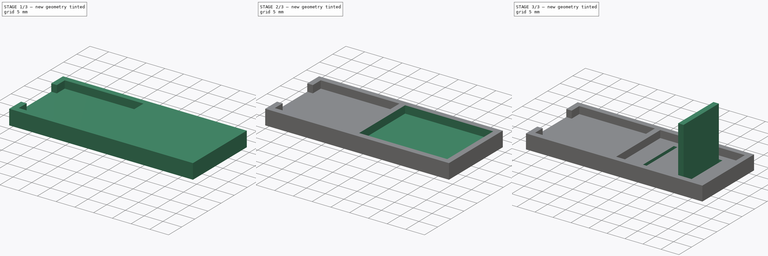
[diagram: build sequence overview — one tinted view per stage of 3, left to right]
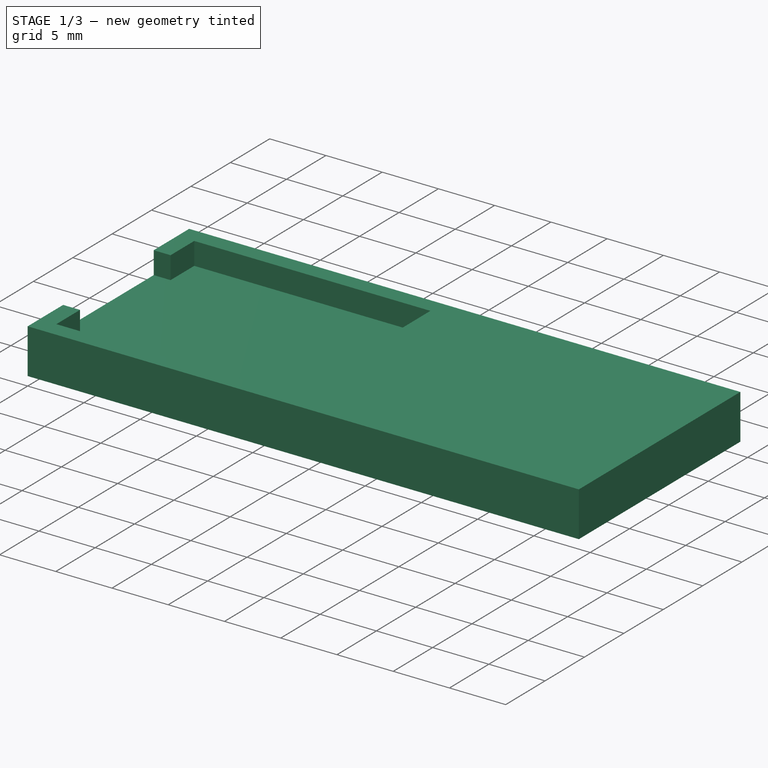
[diagram: stage 1 of 3 — iso view after this stage's code; geometry added in this stage tinted green]
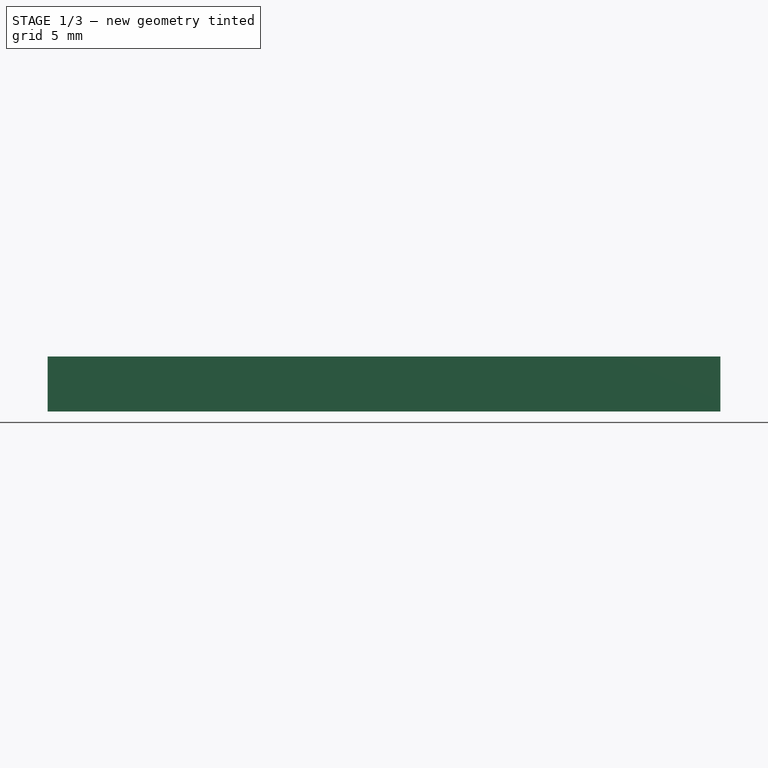
[diagram: stage 1 of 3 — front view after this stage's code; geometry added in this stage tinted green]
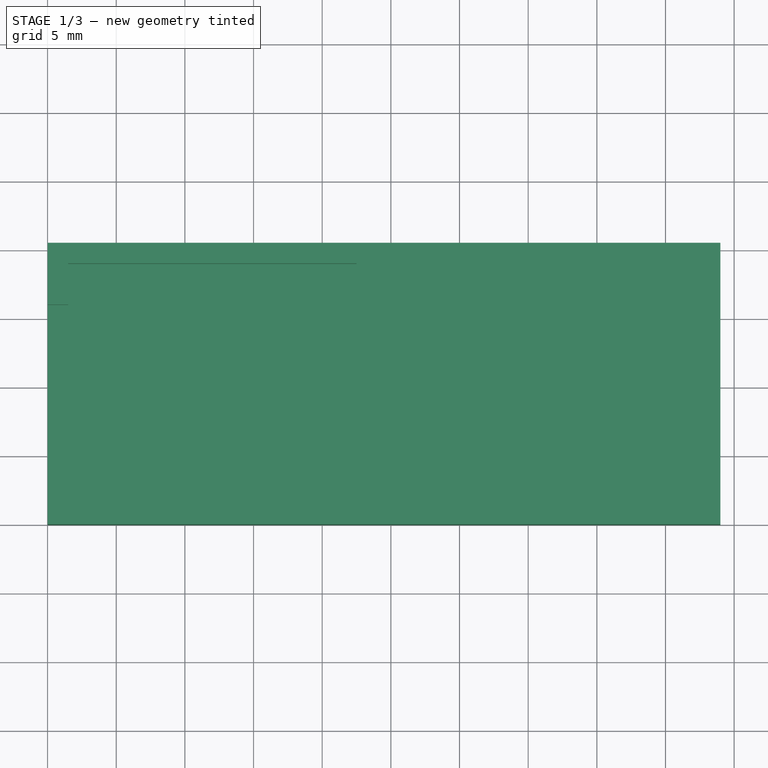
[diagram: stage 1 of 3 — top view after this stage's code; geometry added in this stage tinted green]
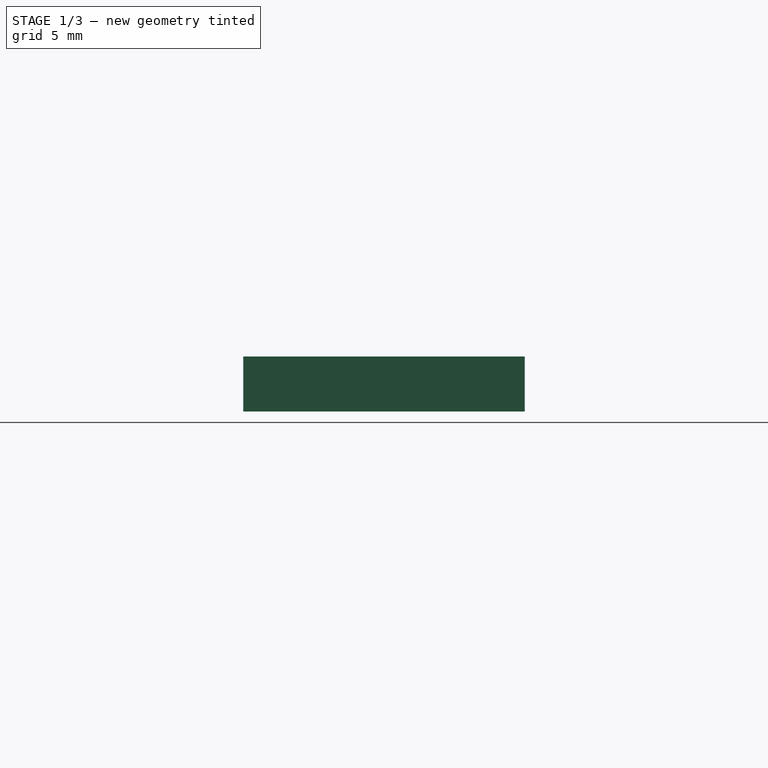
[diagram: stage 1 of 3 — right view after this stage's code; geometry added in this stage tinted green]
FCSTD DOCUMENT  (FreeCAD 0.21R33771 (Git))
Label: basefull
License: All rights reserved
LicenseURL: http://en.wikipedia.org/wiki/All_rights_reserved
objects: Sketcher::SketchObject×5, PartDesign::Pocket×3, PartDesign::Pad×2, PartDesign::Body×1
note: 16 computed .brp shape members not serialized (recipe doc carries the construction recipe); baked Part::Feature solids carry a one-line shape summary decoded from their .brp

FEATURE [Sketcher::SketchObject] Sketch
  FullyConstrained = true
  MapMode = 5
  Support = -> [XY_Plane]
  sketch-geometry (6):
    g0: LineSegment StartX=0 StartY=20.5 StartZ=0 EndX=49 EndY=20.5 EndZ=0
    g1: LineSegment StartX=49 StartY=20.5 StartZ=0 EndX=49 EndY=0 EndZ=0
    g2: LineSegment StartX=49 StartY=0 StartZ=0 EndX=0 EndY=0 EndZ=0
    g3: LineSegment StartX=0 StartY=0 StartZ=0 EndX=0 EndY=20.5 EndZ=0
    g4: GeomPoint X=24 Y=20.5 Z=0
    g5: GeomPoint X=24 Y=0 Z=0
  constraints (15):
    c: Coincident(g0,g1)
    c: Coincident(g1,g2)
    c: Coincident(g2,g3)
    c: Coincident(g3,g0)
    c: Horizontal(g0)
    c: Horizontal(g2)
    c: Vertical(g1)
    c: Vertical(g3)
    c: PointOnObject(g4,g0)
    c: PointOnObject(g5,g2)
    c: Vertical(g5,g4)
    c: DistanceX(g0,g4) = 24
    c: DistanceY(g2,g0) = 20.5
    c: Coincident(g-1,g2)
    c: DistanceX(g4,g0) = 25
FEATURE [PartDesign::Pad] Pad
  Direction = (0,0,1)
  Length = 4
  Length2 = 10
  Profile = -> Sketch
  ReferenceAxis = -> Sketch [N_Axis]
  Type = 0
FEATURE [Sketcher::SketchObject] Sketch001
  ExternalGeometry = -> [Pad]
  FullyConstrained = true
  MapMode = 5
  Placement = pos=(0,0,4) rot=(0,0,1;0rad)
  Support = -> [Pad]
  sketch-geometry (9):
    g0: LineSegment StartX=1.5 StartY=19 StartZ=0 EndX=22.5 EndY=19 EndZ=0
    g1: LineSegment StartX=22.5 StartY=19 StartZ=0 EndX=22.5 EndY=1.5 EndZ=0
    g2: LineSegment StartX=22.5 StartY=1.5 StartZ=0 EndX=1.5 EndY=1.5 EndZ=0
    g3: LineSegment StartX=1.5 StartY=19 StartZ=0 EndX=1.5 EndY=16 EndZ=0
    g4: LineSegment StartX=1.5 StartY=16 StartZ=0 EndX=0 EndY=16 EndZ=0
    g5: LineSegment StartX=0 StartY=16 StartZ=0 EndX=0 EndY=4.5 EndZ=0
    g6: LineSegment StartX=0 StartY=4.5 StartZ=0 EndX=1.5 EndY=4.5 EndZ=0
    g7: LineSegment StartX=1.5 StartY=4.5 StartZ=0 EndX=1.5 EndY=1.5 EndZ=0
    g8: GeomPoint X=24 Y=20.5 Z=0
  constraints (26):
    c: Coincident(g0,g1)
    c: Coincident(g1,g2)
    c: Horizontal(g0)
    c: Horizontal(g2)
    c: Vertical(g1)
    c: Coincident(g3,g0)
    c: Vertical(g3)
    c: Coincident(g4,g3)
    c: Horizontal(g4)
    c: Coincident(g5,g4)
    c: Vertical(g5)
    c: Coincident(g6,g5)
    c: Horizontal(g6)
    c: Coincident(g7,g6)
    c: Coincident(g7,g2)
    c: Vertical(g7)
    c: DistanceY(g3,g3) = 3
    c: DistanceY(g7,g7) = 3
    c: Vertical(g6,g3)
    c: PointOnObject(g8,g-3)
    c: DistanceX(g-3,g8) = 24
    c: DistanceX(g0,g8) = 1.5
    c: DistanceY(g0,g8) = 1.5
    c: DistanceY(g-1,g2) = 1.5
    c: DistanceX(g-1,g2) = 1.5
    c: DistanceX(g4,g4) = 1.5
FEATURE [PartDesign::Pocket] Pocket
  BaseFeature = -> Pad
  Direction = (0,0,-1)
  Length = 2
  Length2 = 5
  Profile = -> Sketch001
  ReferenceAxis = -> Sketch001 [N_Axis]
  Type = 0
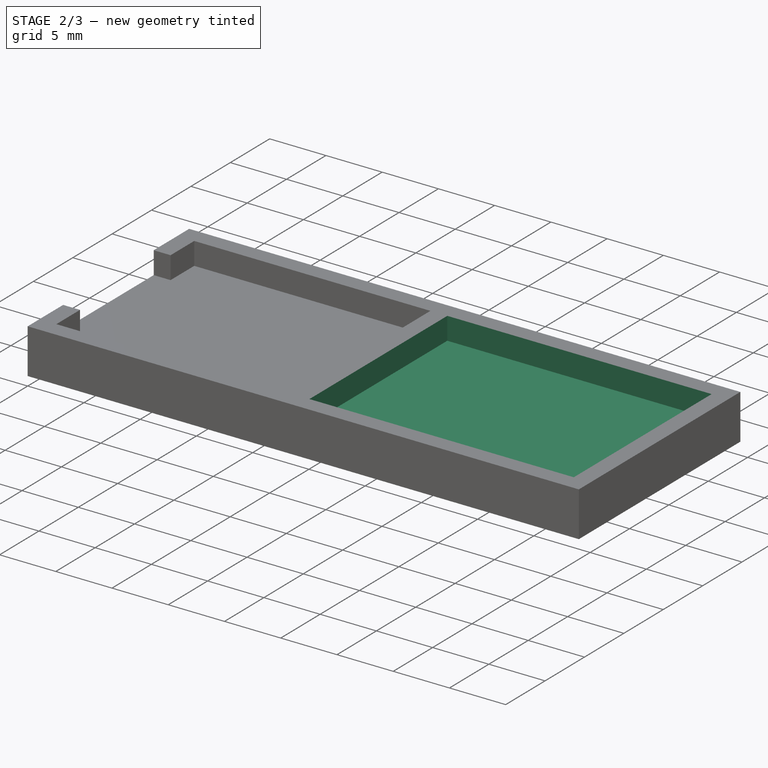
[diagram: stage 2 of 3 — iso view after this stage's code; geometry added in this stage tinted green]
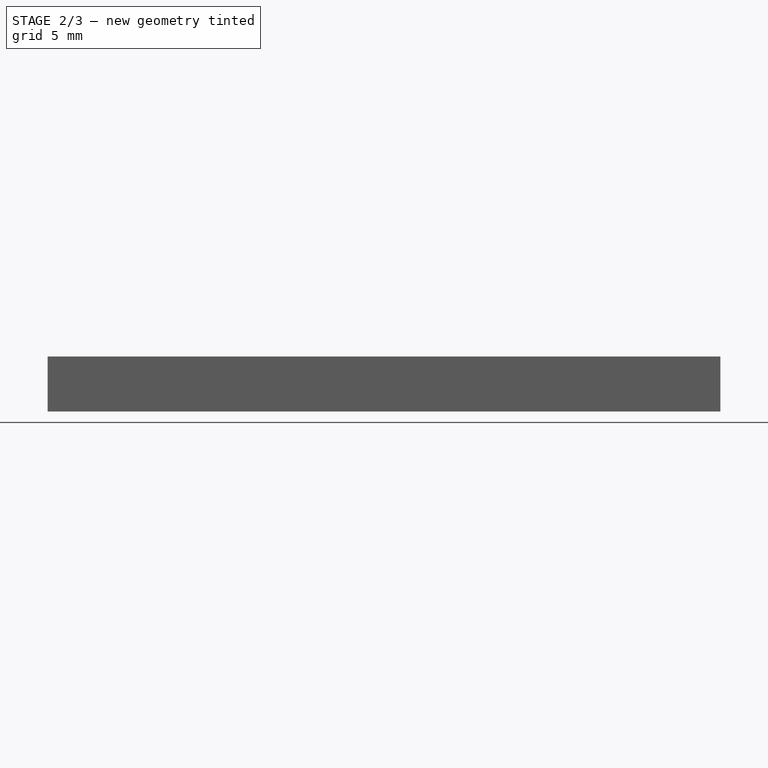
[diagram: stage 2 of 3 — front view after this stage's code; geometry added in this stage tinted green]
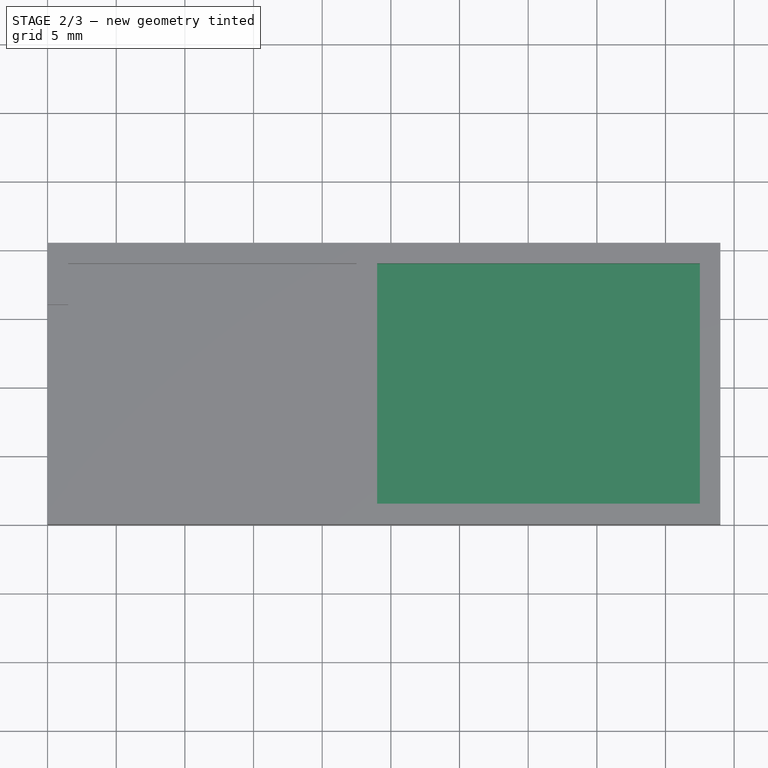
[diagram: stage 2 of 3 — top view after this stage's code; geometry added in this stage tinted green]
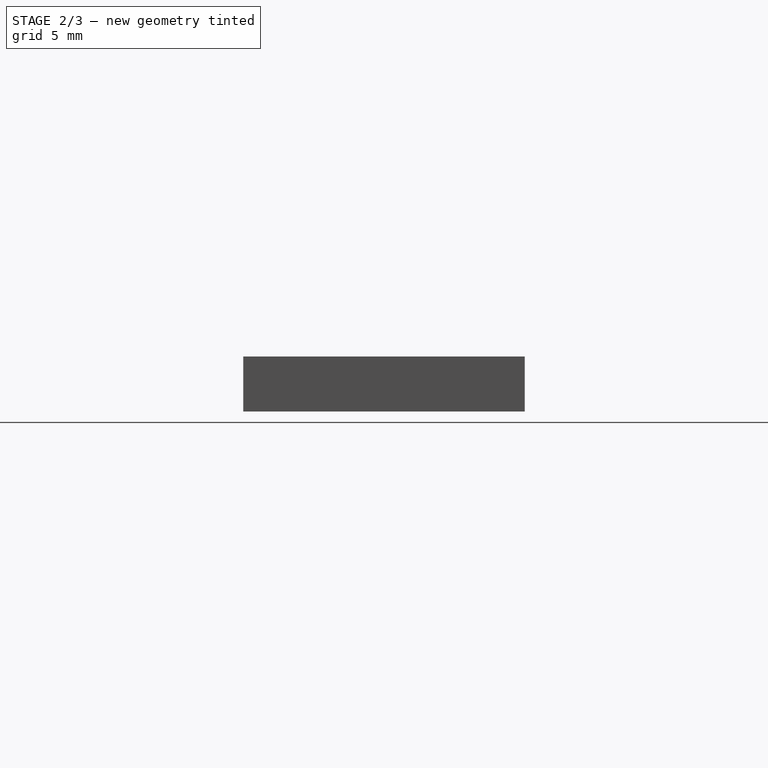
[diagram: stage 2 of 3 — right view after this stage's code; geometry added in this stage tinted green]
FEATURE [Sketcher::SketchObject] Sketch002
  ExternalGeometry = -> [Pocket]
  FullyConstrained = true
  MapMode = 5
  Placement = pos=(0,0,4) rot=(0,0,1;0rad)
  Support = -> [Pocket]
  sketch-geometry (4):
    g0: LineSegment StartX=24 StartY=19 StartZ=0 EndX=47.5 EndY=19 EndZ=0
    g1: LineSegment StartX=47.5 StartY=19 StartZ=0 EndX=47.5 EndY=1.5 EndZ=0
    g2: LineSegment StartX=47.5 StartY=1.5 StartZ=0 EndX=24 EndY=1.5 EndZ=0
    g3: LineSegment StartX=24 StartY=1.5 StartZ=0 EndX=24 EndY=19 EndZ=0
  constraints (12):
    c: Coincident(g0,g1)
    c: Coincident(g1,g2)
    c: Coincident(g2,g3)
    c: Coincident(g3,g0)
    c: Horizontal(g0)
    c: Horizontal(g2)
    c: Vertical(g1)
    c: Vertical(g3)
    c: DistanceX(g0,g-3) = 1.5
    c: DistanceY(g0,g-3) = 1.5
    c: Horizontal(g2,g-4)
    c: DistanceX(g-4,g2) = 1.5
FEATURE [PartDesign::Pocket] Pocket001
  BaseFeature = -> Pocket
  Direction = (0,0,-1)
  Length = 2
  Length2 = 5
  Profile = -> Sketch002
  ReferenceAxis = -> Sketch002 [N_Axis]
  Type = 0
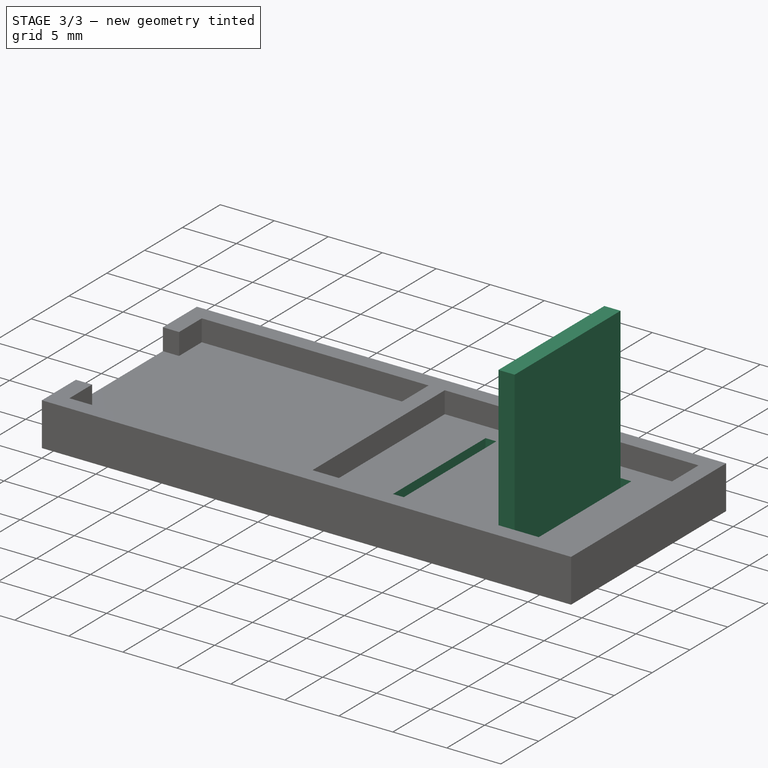
[diagram: stage 3 of 3 — iso view after this stage's code; geometry added in this stage tinted green]
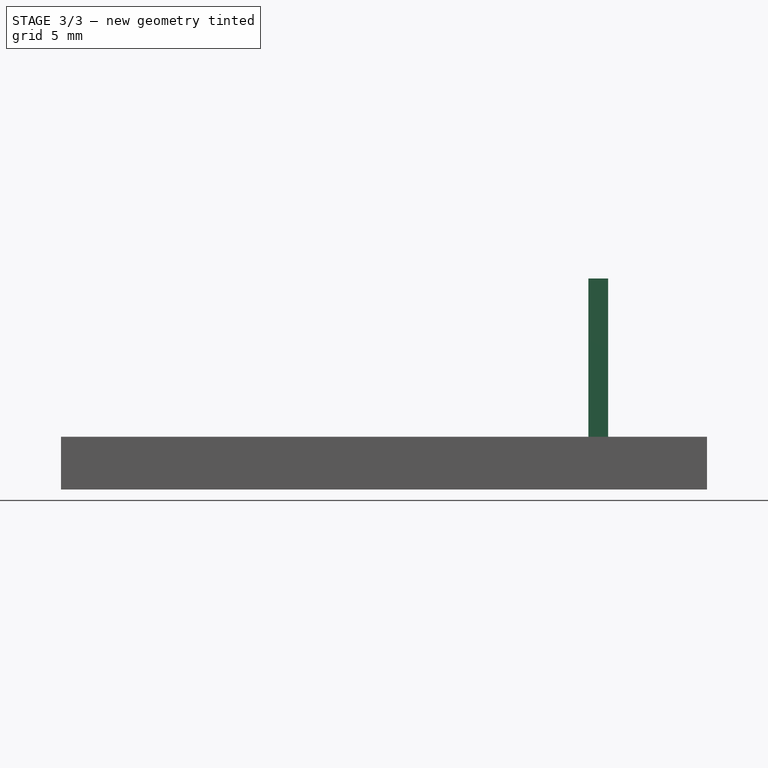
[diagram: stage 3 of 3 — front view after this stage's code; geometry added in this stage tinted green]
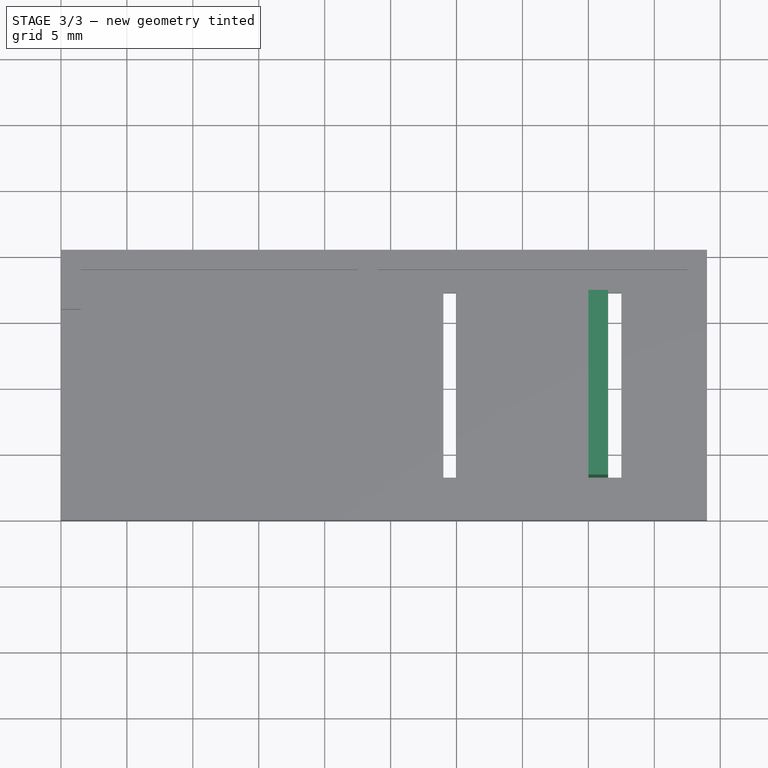
[diagram: stage 3 of 3 — top view after this stage's code; geometry added in this stage tinted green]
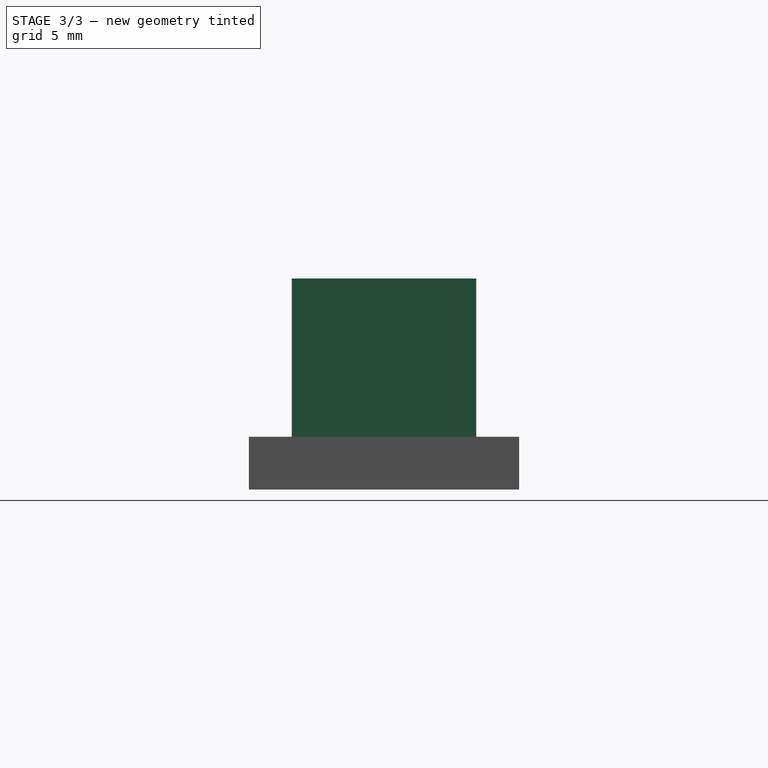
[diagram: stage 3 of 3 — right view after this stage's code; geometry added in this stage tinted green]
FEATURE [Sketcher::SketchObject] Sketch004
  ExternalGeometry = -> [Pocket001]
  FullyConstrained = true
  MapMode = 5
  Placement = pos=(0,0,2) rot=(0,0,1;0rad)
  Support = -> [Pocket001]
  sketch-geometry (8):
    g0: LineSegment StartX=29 StartY=17.25 StartZ=0 EndX=30 EndY=17.25 EndZ=0
    g1: LineSegment StartX=30 StartY=17.25 StartZ=0 EndX=30 EndY=3.25 EndZ=0
    g2: LineSegment StartX=30 StartY=3.25 StartZ=0 EndX=29 EndY=3.25 EndZ=0
    g3: LineSegment StartX=29 StartY=3.25 StartZ=0 EndX=29 EndY=17.25 EndZ=0
    g4: LineSegment StartX=41.5 StartY=17.25 StartZ=0 EndX=42.5 EndY=17.25 EndZ=0
    g5: LineSegment StartX=42.5 StartY=17.25 StartZ=0 EndX=42.5 EndY=3.25 EndZ=0
    g6: LineSegment StartX=42.5 StartY=3.25 StartZ=0 EndX=41.5 EndY=3.25 EndZ=0
    g7: LineSegment StartX=41.5 StartY=3.25 StartZ=0 EndX=41.5 EndY=17.25 EndZ=0
  constraints (24):
    c: Coincident(g0,g1)
    c: Coincident(g1,g2)
    c: Coincident(g3,g0)
    c: Horizontal(g0)
    c: Horizontal(g2)
    c: Vertical(g1)
    c: Vertical(g3)
    c: DistanceY(g3,g3) = 14
    c: DistanceX(g0,g0) = 1
    c: DistanceY(g0,g-6) = 1.75
    c: Coincident(g2,g3)
    c: Coincident(g4,g5)
    c: Coincident(g5,g6)
    c: Coincident(g6,g7)
    c: Coincident(g7,g4)
    c: Horizontal(g4)
    c: Horizontal(g6)
    c: Vertical(g5)
    c: Vertical(g7)
    c: DistanceX(g4,g4) = 1
    c: DistanceY(g7,g7) = 14
    c: DistanceY(g4,g-6) = 1.75
    c: DistanceX(g-8,g0) = 5
    c: DistanceX(g4,g-6) = 5
FEATURE [PartDesign::Pocket] Pocket002
  BaseFeature = -> Pocket001
  Direction = (0,0,-1)
  Length = 2
  Length2 = 5
  Profile = -> Sketch004
  ReferenceAxis = -> Sketch004 [N_Axis]
  Type = 0
FEATURE [Sketcher::SketchObject] Sketch005
  ExternalGeometry = -> [Pocket002]
  FullyConstrained = true
  MapMode = 5
  Placement = pos=(0,0,2) rot=(0,0,1;0rad)
  Support = -> [Pocket002]
  sketch-geometry (4):
    g0: LineSegment StartX=41.5 StartY=17.25 StartZ=0 EndX=40 EndY=17.25 EndZ=0
    g1: LineSegment StartX=41.5 StartY=3.25 StartZ=0 EndX=40 EndY=3.25 EndZ=0
    g2: LineSegment StartX=40 StartY=3.25 StartZ=0 EndX=40 EndY=17.25 EndZ=0
    g3: LineSegment StartX=41.5 StartY=17.25 StartZ=0 EndX=41.5 EndY=3.25 EndZ=0
  constraints (10):
    c: Coincident(g0,g-3)
    c: Horizontal(g0)
    c: Coincident(g1,g-3)
    c: Horizontal(g1)
    c: Coincident(g2,g1)
    c: Coincident(g2,g0)
    c: Vertical(g2)
    c: DistanceX(g1,g1) = 1.5
    c: Coincident(g3,g0)
    c: Coincident(g3,g1)
FEATURE [PartDesign::Pad] Pad001
  BaseFeature = -> Pocket002
  Direction = (0,0,1)
  Length = 14
  Length2 = 10
  Profile = -> Sketch005
  ReferenceAxis = -> Sketch005 [N_Axis]
  Type = 0
FEATURE [PartDesign::Body] Body
  Group = -> [Sketch,Pad,Sketch001,Pocket,Sketch002,Pocket001,Sketch004,Pocket002,Sketch005,Pad001]
  Origin = -> Origin
  Tip = -> Pad001
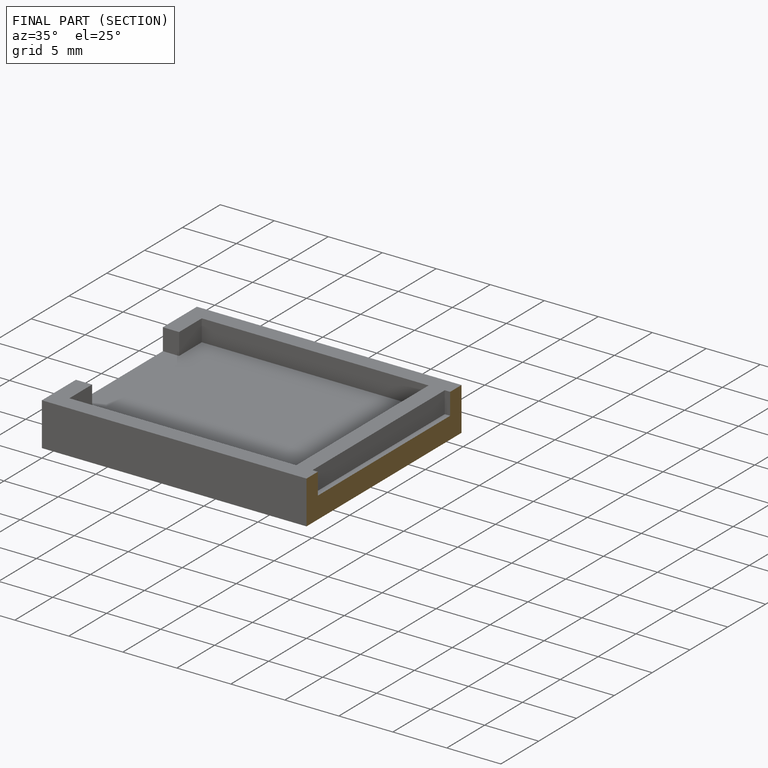
[diagram: finished part — half-section view (interior)]
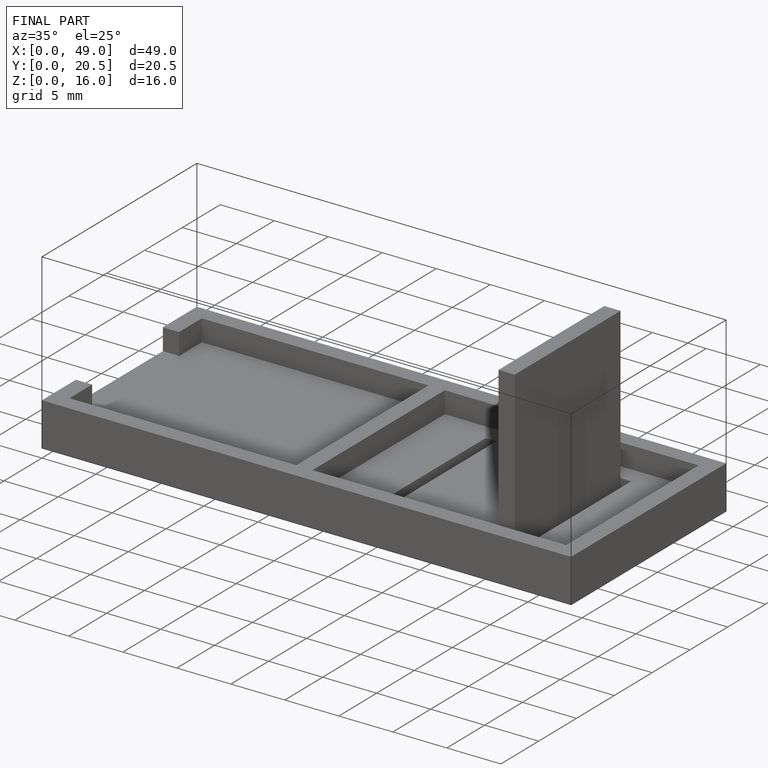
[diagram: finished part — iso view with bounding-box wireframe]
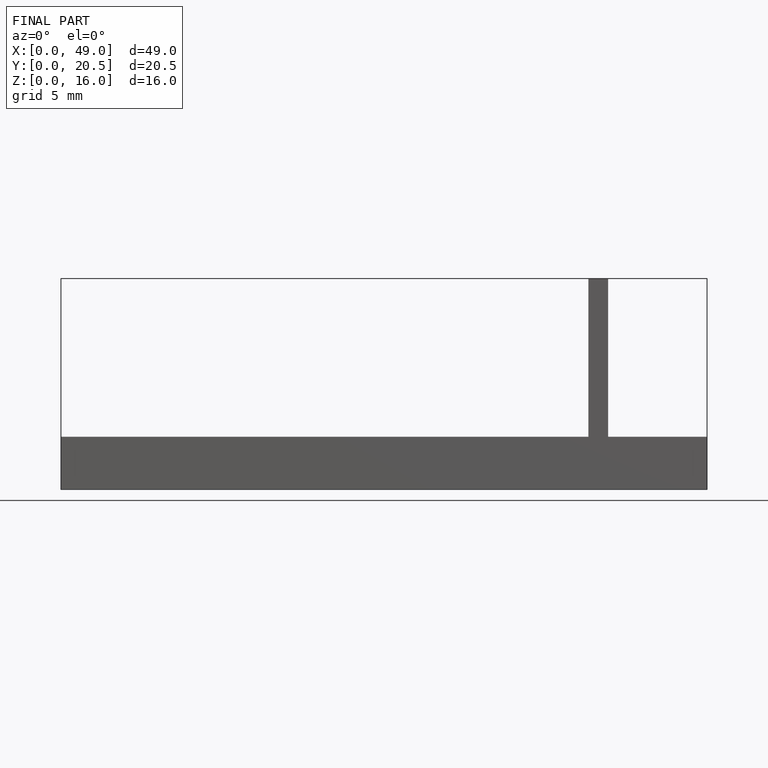
[diagram: finished part — front view with bounding-box wireframe]
